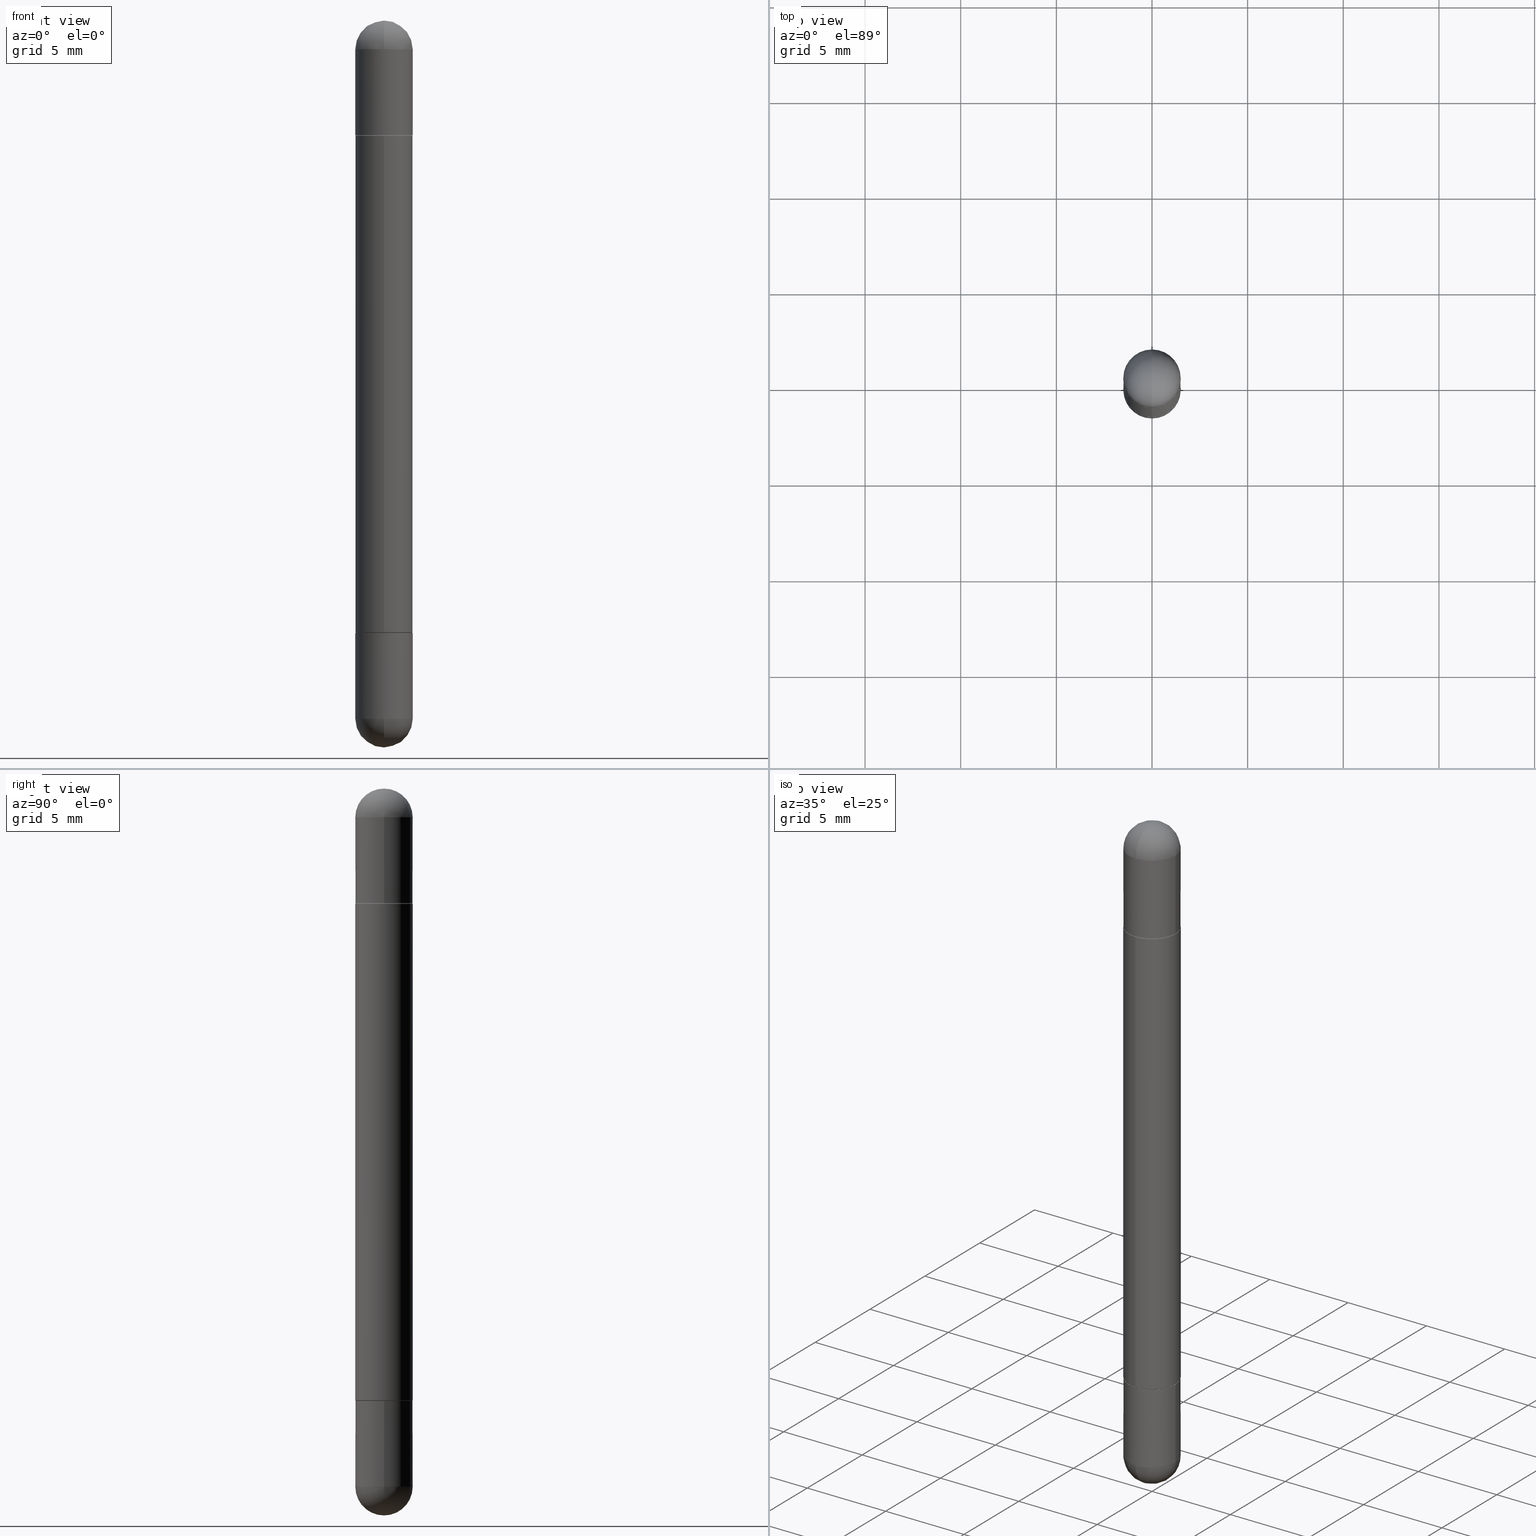
[diagram: canonical four-view strip — front | top / right | iso, engineering-drawing reading convention]
A machine part, canonical four-view strip (front | top / right | iso — engineering-drawing reading convention). The complete STEP part file that produces these views, byte-faithful:
ISO-10303-21;
HEADER;
FILE_DESCRIPTION (( 'STEP AP203' ),
    '1' );
FILE_NAME ('49077.STEP',
    '2024-03-01T12:50:32',
    ( '' ),
    ( '' ),
    'SwSTEP 2.0',
    'SolidWorks 2023',
    '' );
FILE_SCHEMA (( 'CONFIG_CONTROL_DESIGN' ));
ENDSEC;

DATA;
#1 = APPROVAL_ROLE ( '' ) ;
#2 = DIRECTION ( 'NONE',  ( -4.937700262165390546E-15, -0.7071067811866658115, 0.7071067811864292230 ) ) ;
#3 = ADVANCED_FACE ( 'NONE', ( #662 ), #674, .T. ) ;
#4 = VERTEX_POINT ( 'NONE', #732 ) ;
#5 = CARTESIAN_POINT ( 'NONE',  ( 3.090787597894449252E-29, -4.384967029417703584E-15, -0.2362000000000003264 ) ) ;
#6 = CARTESIAN_POINT ( 'NONE',  ( 3.088334397165904554E-29, -4.381486620631754468E-15, -0.2372000000000001330 ) ) ;
#7 = ORIENTED_EDGE ( 'NONE', *, *, #535, .F. ) ;
#8 = PRODUCT_DEFINITION ( 'UNKNOWN', '', #379, #723 ) ;
#9 = CARTESIAN_POINT ( 'NONE',  ( 1.835116804988446223E-29, -2.603519792329481591E-15, -0.7480500000000001037 ) ) ;
#10 = DIRECTION ( 'NONE',  ( -2.445468806185136597E-29, 3.491481338843145583E-15, 1.000000000000000000 ) ) ;
#11 = VERTEX_POINT ( 'NONE', #534 ) ;
#12 = CARTESIAN_POINT ( 'NONE',  ( -0.05905000000000001914, -4.288599812930171320E-15, -1.437049999999999939 ) ) ;
#13 = AXIS2_PLACEMENT_3D ( 'NONE', #611, #48, #802 ) ;
#14 = VECTOR ( 'NONE', #443, 39.37007874015748143 ) ;
#15 = EDGE_CURVE ( 'NONE', #599, #256, #668, .T. ) ;
#16 = CARTESIAN_POINT ( 'NONE',  ( 3.090787597894449252E-29, -4.384967029417703584E-15, -0.2362000000000003264 ) ) ;
#17 = ORIENTED_EDGE ( 'NONE', *, *, #739, .F. ) ;
#18 = LINE ( 'NONE', #67, #251 ) ;
#19 = PERSON_AND_ORGANIZATION ( #602, #449 ) ;
#20 = CARTESIAN_POINT ( 'NONE',  ( -0.05905000000000001914, -4.288599812930171320E-15, -1.259899999999999798 ) ) ;
#21 = ORIENTED_EDGE ( 'NONE', *, *, #402, .F. ) ;
#22 = DIRECTION ( 'NONE',  ( 2.445468806185136597E-29, -3.491481338843145583E-15, 1.000000000000000000 ) ) ;
#23 = DIRECTION ( 'NONE',  ( 1.000000000000000000, -6.982962677686266711E-15, 4.876176775795935793E-29 ) ) ;
#24 = ORIENTED_EDGE ( 'NONE', *, *, #150, .T. ) ;
#25 = DIRECTION ( 'NONE',  ( -2.453200728545479621E-29, 3.480408785949443313E-15, 1.000000000000000000 ) ) ;
#26 = VECTOR ( 'NONE', #2, 39.37007874015748143 ) ;
#27 = DIRECTION ( 'NONE',  ( 2.445468806185136597E-29, -3.491481338843145583E-15, 1.000000000000000000 ) ) ;
#28 = AXIS2_PLACEMENT_3D ( 'NONE', #735, #90, #609 ) ;
#29 = LOCAL_TIME ( 7, 50, 32.00000000000000000, #187 ) ;
#30 = EDGE_LOOP ( 'NONE', ( #652, #525, #338, #500 ) ) ;
#31 = EDGE_CURVE ( 'NONE', #4, #399, #816, .T. ) ;
#32 = PLANE ( 'NONE',  #795 ) ;
#33 = DIRECTION ( 'NONE',  ( 1.000000000000000000, -6.982962677686265922E-15, -4.883557194083112340E-29 ) ) ;
#34 = ORIENTED_EDGE ( 'NONE', *, *, #531, .T. ) ;
#35 = PERSON_AND_ORGANIZATION ( #602, #449 ) ;
#36 = DIRECTION ( 'NONE',  ( -7.105427357601001070E-15, -1.000000000000000000, 0.000000000000000000 ) ) ;
#37 = DIRECTION ( 'NONE',  ( -2.453200728545479340E-29, 3.480408785949443313E-15, -1.000000000000000000 ) ) ;
#38 = EDGE_LOOP ( 'NONE', ( #72, #465, #589, #786, #557 ) ) ;
#39 = EDGE_CURVE ( 'NONE', #11, #812, #356, .T. ) ;
#40 = CARTESIAN_POINT ( 'NONE',  ( 3.183141170014464762E-29, -5.491615626124592102E-15, -1.437049999999999939 ) ) ;
#41 = CIRCLE ( 'NONE', #196, 0.05905000000000001914 ) ;
#42 = CIRCLE ( 'NONE', #493, 0.05804999999999999744 ) ;
#43 = VERTEX_POINT ( 'NONE', #225 ) ;
#44 = CARTESIAN_POINT ( 'NONE',  ( 3.514260947928350449E-29, -5.017433257984542594E-15, -0.05905000000000028976 ) ) ;
#45 = ORIENTED_EDGE ( 'NONE', *, *, #635, .F. ) ;
#46 = COORDINATED_UNIVERSAL_TIME_OFFSET ( 5, 0, .BEHIND. ) ;
#47 = DIRECTION ( 'NONE',  ( 2.438088387897960049E-29, -3.491481338843145188E-15, 1.000000000000000000 ) ) ;
#48 = DIRECTION ( 'NONE',  ( -2.453200728545479621E-29, 3.480408785949443313E-15, -1.000000000000000000 ) ) ;
#49 = EDGE_CURVE ( 'NONE', #713, #313, #666, .T. ) ;
#50 = CLOSED_SHELL ( 'NONE', ( #440, #683, #421, #714, #269 ) ) ;
#51 = DIRECTION ( 'NONE',  ( 2.438088387897960049E-29, -3.491481338843145188E-15, -1.000000000000000000 ) ) ;
#52 = CONICAL_SURFACE ( 'NONE', #472, 0.05804999999999999744, 0.7853981633976190313 ) ;
#53 = VECTOR ( 'NONE', #219, 39.37007874015748143 ) ;
#54 = LOCAL_TIME ( 7, 50, 32.00000000000000000, #170 ) ;
#55 = DATE_TIME_ROLE ( 'creation_date' ) ;
#56 = FACE_OUTER_BOUND ( 'NONE', #492, .T. ) ;
#57 = ORIENTED_EDGE ( 'NONE', *, *, #583, .F. ) ;
#58 = PLANE ( 'NONE',  #778 ) ;
#59 = ORIENTED_EDGE ( 'NONE', *, *, #246, .T. ) ;
#60 = CARTESIAN_POINT ( 'NONE',  ( 4.051124067684407678E-16, 0.05904999999999575866, -0.2371999999999999387 ) ) ;
#61 = APPROVAL_STATUS ( 'not_yet_approved' ) ;
#62 = EDGE_CURVE ( 'NONE', #619, #436, #349, .T. ) ;
#63 = DIRECTION ( 'NONE',  ( -2.453200728545479621E-29, 3.480408785949443313E-15, -1.000000000000000000 ) ) ;
#64 = ORIENTED_EDGE ( 'NONE', *, *, #373, .F. ) ;
#65 = CIRCLE ( 'NONE', #524, 0.05905000000000001914 ) ;
#66 = AXIS2_PLACEMENT_3D ( 'NONE', #351, #47, #224 ) ;
#67 = CARTESIAN_POINT ( 'NONE',  ( -0.05905000000000001914, 4.195754854663392958E-16, -2.904631170795522943E-30 ) ) ;
#68 = CARTESIAN_POINT ( 'NONE',  ( 0.000000000000000000, 0.000000000000000000, 0.000000000000000000 ) ) ;
#69 = VERTEX_POINT ( 'NONE', #359 ) ;
#70 = CARTESIAN_POINT ( 'NONE',  ( 3.081046148912652946E-29, -4.398917338808479031E-15, -0.2362000000000003264 ) ) ;
#71 = DIRECTION ( 'NONE',  ( -2.453200728545479340E-29, 3.480408785949443313E-15, -1.000000000000000000 ) ) ;
#72 = ORIENTED_EDGE ( 'NONE', *, *, #384, .F. ) ;
#73 = ADVANCED_FACE ( 'NONE', ( #544 ), #404, .T. ) ;
#74 = CARTESIAN_POINT ( 'NONE',  ( 3.982519087706682683E-16, 0.05804999999999560512, -0.2362000000000001321 ) ) ;
#75 = CYLINDRICAL_SURFACE ( 'NONE', #804, 0.05905000000000007465 ) ;
#76 = ORIENTED_EDGE ( 'NONE', *, *, #745, .F. ) ;
#77 = DIRECTION ( 'NONE',  ( -1.000000000000000000, 0.000000000000000000, 0.000000000000000000 ) ) ;
#78 = AXIS2_PLACEMENT_3D ( 'NONE', #539, #799, #401 ) ;
#79 = CARTESIAN_POINT ( 'NONE',  ( 0.000000000000000000, 0.000000000000000000, -1.496100000000000207 ) ) ;
#80 = ORIENTED_EDGE ( 'NONE', *, *, #317, .F. ) ;
#81 = DIRECTION ( 'NONE',  ( -6.982962677686265922E-15, -1.000000000000000000, 4.706025828879006993E-15 ) ) ;
#82 = LINE ( 'NONE', #464, #130 ) ;
#83 = ORIENTED_EDGE ( 'NONE', *, *, #546, .T. ) ;
#84 = FACE_OUTER_BOUND ( 'NONE', #496, .T. ) ;
#85 = DIRECTION ( 'NONE',  ( -2.453200728545479340E-29, 3.480408785949443313E-15, -1.000000000000000000 ) ) ;
#86 = EDGE_CURVE ( 'NONE', #537, #11, #604, .T. ) ;
#87 = ORIENTED_EDGE ( 'NONE', *, *, #402, .T. ) ;
#88 = AXIS2_PLACEMENT_3D ( 'NONE', #6, #810, #445 ) ;
#89 = PERSON_AND_ORGANIZATION_ROLE ( 'design_supplier' ) ;
#90 = DIRECTION ( 'NONE',  ( -2.445468806185136597E-29, 3.491481338843145583E-15, -1.000000000000000000 ) ) ;
#91 = VECTOR ( 'NONE', #297, 39.37007874015748143 ) ;
#92 = LOCAL_TIME ( 7, 50, 32.00000000000000000, #46 ) ;
#93 = ADVANCED_FACE ( 'NONE', ( #288 ), #244, .T. ) ;
#94 = VERTEX_POINT ( 'NONE', #165 ) ;
#95 = SECURITY_CLASSIFICATION_LEVEL ( 'unclassified' ) ;
#96 = ADVANCED_FACE ( 'NONE', ( #316 ), #52, .T. ) ;
#97 = CARTESIAN_POINT ( 'NONE',  ( 4.051124067684094106E-16, 0.05905000000000007465, -1.496099999999999985 ) ) ;
#98 = DIRECTION ( 'NONE',  ( -2.453200728545479621E-29, 3.480408785949443313E-15, 1.000000000000000000 ) ) ;
#99 = VERTEX_POINT ( 'NONE', #550 ) ;
#100 = EDGE_CURVE ( 'NONE', #121, #599, #685, .T. ) ;
#101 = CARTESIAN_POINT ( 'NONE',  ( 3.183141170014464762E-29, -5.491615626124592102E-15, -0.05905000000000028976 ) ) ;
#102 = ORIENTED_EDGE ( 'NONE', *, *, #546, .F. ) ;
#103 = FACE_OUTER_BOUND ( 'NONE', #554, .T. ) ;
#104 = AXIS2_PLACEMENT_3D ( 'NONE', #762, #195, #124 ) ;
#105 = CIRCLE ( 'NONE', #117, 0.05905000000000001914 ) ;
#106 = DIRECTION ( 'NONE',  ( -6.982962677686265922E-15, -1.000000000000000000, 4.706025828879006993E-15 ) ) ;
#107 = AXIS2_PLACEMENT_3D ( 'NONE', #585, #25, #528 ) ;
#108 = CALENDAR_DATE ( 2024, 1, 3 ) ;
#109 = DIRECTION ( 'NONE',  ( 6.982962677686265922E-15, 1.000000000000000000, 3.469747663417762014E-15 ) ) ;
#110 = DIRECTION ( 'NONE',  ( 1.000000000000000000, -6.982962677686265922E-15, -4.883557194083112340E-29 ) ) ;
#111 = ORIENTED_EDGE ( 'NONE', *, *, #535, .T. ) ;
#112 = EDGE_CURVE ( 'NONE', #157, #293, #259, .T. ) ;
#113 = ORIENTED_EDGE ( 'NONE', *, *, #200, .F. ) ;
#114 = DATE_AND_TIME ( #681, #687 ) ;
#115 = FACE_OUTER_BOUND ( 'NONE', #600, .T. ) ;
#116 = CIRCLE ( 'NONE', #325, 0.05905000000000013710 ) ;
#117 = AXIS2_PLACEMENT_3D ( 'NONE', #70, #132, #497 ) ;
#118 = EDGE_LOOP ( 'NONE', ( #305, #755, #59, #595 ) ) ;
#119 = COORDINATED_UNIVERSAL_TIME_OFFSET ( 5, 0, .BEHIND. ) ;
#120 = CARTESIAN_POINT ( 'NONE',  ( 3.183141170014464762E-29, -5.491615626124592102E-15, -0.05905000000000028976 ) ) ;
#121 = VERTEX_POINT ( 'NONE', #247 ) ;
#122 = EDGE_CURVE ( 'NONE', #371, #632, #656, .T. ) ;
#123 = CYLINDRICAL_SURFACE ( 'NONE', #146, 0.05905000000000001914 ) ;
#124 = DIRECTION ( 'NONE',  ( 1.000000000000000000, -6.982962677686270655E-15, 0.000000000000000000 ) ) ;
#125 = ORIENTED_EDGE ( 'NONE', *, *, #597, .T. ) ;
#126 = CARTESIAN_POINT ( 'NONE',  ( 0.000000000000000000, 0.000000000000000000, 0.000000000000000000 ) ) ;
#127 = CC_DESIGN_DATE_AND_TIME_ASSIGNMENT ( #230, #480, ( #343 ) ) ;
#128 = CYLINDRICAL_SURFACE ( 'NONE', #792, 0.05905000000000001914 ) ;
#129 = ORIENTED_EDGE ( 'NONE', *, *, #86, .T. ) ;
#130 = VECTOR ( 'NONE', #71, 39.37007874015748143 ) ;
#131 = AXIS2_PLACEMENT_3D ( 'NONE', #454, #372, #627 ) ;
#132 = DIRECTION ( 'NONE',  ( 2.445468806185136597E-29, -3.491481338843145583E-15, 1.000000000000000000 ) ) ;
#133 = AXIS2_PLACEMENT_3D ( 'NONE', #283, #210, #144 ) ;
#134 = DIRECTION ( 'NONE',  ( 2.445468806185136597E-29, -3.491481338843145583E-15, 1.000000000000000000 ) ) ;
#135 = ADVANCED_FACE ( 'NONE', ( #622 ), #58, .F. ) ;
#136 = ORIENTED_EDGE ( 'NONE', *, *, #200, .T. ) ;
#137 = CARTESIAN_POINT ( 'NONE',  ( 3.090787597894449252E-29, -4.384967029417703584E-15, -0.2362000000000003264 ) ) ;
#138 = DIRECTION ( 'NONE',  ( -6.982962677686265922E-15, -1.000000000000000000, -3.469747663417769114E-15 ) ) ;
#139 = EDGE_LOOP ( 'NONE', ( #800, #45 ) ) ;
#140 = DIRECTION ( 'NONE',  ( 2.453200728545479621E-29, -3.480408785949443313E-15, 1.000000000000000000 ) ) ;
#141 = CARTESIAN_POINT ( 'NONE',  ( -0.05905000000000001914, -4.303062891628101254E-15, -0.2362000000000003264 ) ) ;
#142 = VERTEX_POINT ( 'NONE', #304 ) ;
#143 = EDGE_CURVE ( 'NONE', #605, #619, #444, .T. ) ;
#144 = DIRECTION ( 'NONE',  ( -6.982962677686265922E-15, -1.000000000000000000, 4.626330217890359081E-15 ) ) ;
#145 = AXIS2_PLACEMENT_3D ( 'NONE', #768, #85, #151 ) ;
#146 = AXIS2_PLACEMENT_3D ( 'NONE', #329, #193, #257 ) ;
#147 = DIRECTION ( 'NONE',  ( -6.982962677686265922E-15, -1.000000000000000000, -4.626330217890363814E-15 ) ) ;
#148 = ORIENTED_EDGE ( 'NONE', *, *, #354, .F. ) ;
#149 = DIRECTION ( 'NONE',  ( 1.000000000000000000, -6.982962677686270655E-15, 0.000000000000000000 ) ) ;
#150 = EDGE_CURVE ( 'NONE', #69, #371, #559, .T. ) ;
#151 = DIRECTION ( 'NONE',  ( -6.982962677686265922E-15, -1.000000000000000000, -3.480408785949443313E-15 ) ) ;
#152 = ORIENTED_EDGE ( 'NONE', *, *, #261, .F. ) ;
#153 = DIRECTION ( 'NONE',  ( 2.438088387897960049E-29, -3.491481338843145188E-15, 1.000000000000000000 ) ) ;
#154 = APPROVAL_ROLE ( '' ) ;
#155 = DIRECTION ( 'NONE',  ( -2.453200728545479621E-29, 3.480408785949443313E-15, -1.000000000000000000 ) ) ;
#156 = EDGE_CURVE ( 'NONE', #43, #346, #226, .T. ) ;
#157 = VERTEX_POINT ( 'NONE', #375 ) ;
#158 = AXIS2_PLACEMENT_3D ( 'NONE', #301, #689, #505 ) ;
#159 = CIRCLE ( 'NONE', #526, 0.05905000000000025506 ) ;
#160 = DIRECTION ( 'NONE',  ( -6.982962677686265922E-15, -1.000000000000000000, -3.480408785949443313E-15 ) ) ;
#161 = VECTOR ( 'NONE', #397, 39.37007874015748143 ) ;
#162 = EDGE_CURVE ( 'NONE', #4, #584, #748, .T. ) ;
#163 = DIRECTION ( 'NONE',  ( -2.445468806185136877E-29, 3.491481338843145188E-15, -1.000000000000000000 ) ) ;
#164 = DIRECTION ( 'NONE',  ( 6.982962677686265922E-15, 1.000000000000000000, -4.626330217890349615E-15 ) ) ;
#165 = CARTESIAN_POINT ( 'NONE',  ( -4.195754854663065087E-16, -0.05905000000000539678, -1.437049999999999716 ) ) ;
#166 = MANIFOLD_SOLID_BREP ( 'Mirror4[3]', #374 ) ;
#167 = EDGE_LOOP ( 'NONE', ( #80, #460 ) ) ;
#168 = DIRECTION ( 'NONE',  ( -2.445468806185136597E-29, 3.491481338843145583E-15, -1.000000000000000000 ) ) ;
#169 = ORIENTED_EDGE ( 'NONE', *, *, #150, .F. ) ;
#170 = COORDINATED_UNIVERSAL_TIME_OFFSET ( 5, 0, .BEHIND. ) ;
#171 = DIRECTION ( 'NONE',  ( 1.000000000000000000, -6.982962677686270655E-15, 0.000000000000000000 ) ) ;
#172 = VECTOR ( 'NONE', #455, 39.37007874015748143 ) ;
#173 = AXIS2_PLACEMENT_3D ( 'NONE', #281, #263, #334 ) ;
#174 = ORIENTED_EDGE ( 'NONE', *, *, #412, .T. ) ;
#175 = EDGE_CURVE ( 'NONE', #812, #293, #353, .T. ) ;
#176 =( NAMED_UNIT ( * ) PLANE_ANGLE_UNIT ( ) SI_UNIT ( $, .RADIAN. ) );
#177 = DIRECTION ( 'NONE',  ( 1.000000000000000000, -6.982962677686270655E-15, 0.000000000000000000 ) ) ;
#178 = CALENDAR_DATE ( 2024, 1, 3 ) ;
#179 = DIRECTION ( 'NONE',  ( -6.982962677686265922E-15, -1.000000000000000000, -3.469747663417769114E-15 ) ) ;
#180 = ORIENTED_EDGE ( 'NONE', *, *, #39, .T. ) ;
#181 = CARTESIAN_POINT ( 'NONE',  ( 3.514260947928350449E-29, -5.017433257984542594E-15, -0.05905000000000028976 ) ) ;
#182 = AXIS2_PLACEMENT_3D ( 'NONE', #181, #134, #430 ) ;
#183 = AXIS2_PLACEMENT_3D ( 'NONE', #44, #796, #233 ) ;
#184 = EDGE_CURVE ( 'NONE', #619, #605, #116, .T. ) ;
#185 = VERTEX_POINT ( 'NONE', #618 ) ;
#186 = DIRECTION ( 'NONE',  ( -6.982962677686265922E-15, -1.000000000000000000, -3.529519371659254850E-15 ) ) ;
#187 = COORDINATED_UNIVERSAL_TIME_OFFSET ( 5, 0, .BEHIND. ) ;
#188 = DIRECTION ( 'NONE',  ( -6.982962677686265922E-15, -1.000000000000000000, -4.626330217890363814E-15 ) ) ;
#189 = ORIENTED_EDGE ( 'NONE', *, *, #295, .T. ) ;
#190 = DIRECTION ( 'NONE',  ( 1.000000000000000000, -6.982962677686270655E-15, 0.000000000000000000 ) ) ;
#191 = CARTESIAN_POINT ( 'NONE',  ( 3.183141170014464762E-29, -5.491615626124592102E-15, -1.437049999999999939 ) ) ;
#192 = ORIENTED_EDGE ( 'NONE', *, *, #635, .T. ) ;
#193 = DIRECTION ( 'NONE',  ( -2.445468806185136597E-29, 3.491481338843145583E-15, -1.000000000000000000 ) ) ;
#194 = EDGE_CURVE ( 'NONE', #142, #408, #249, .T. ) ;
#195 = DIRECTION ( 'NONE',  ( -2.445468806185136597E-29, 3.491481338843145583E-15, 1.000000000000000000 ) ) ;
#196 = AXIS2_PLACEMENT_3D ( 'NONE', #711, #523, #529 ) ;
#197 = ORIENTED_EDGE ( 'NONE', *, *, #508, .F. ) ;
#198 = CIRCLE ( 'NONE', #418, 0.05905000000000001914 ) ;
#199 = CARTESIAN_POINT ( 'NONE',  ( 0.000000000000000000, 0.000000000000000000, -1.496100000000000207 ) ) ;
#200 = EDGE_CURVE ( 'NONE', #728, #580, #766, .T. ) ;
#201 = CARTESIAN_POINT ( 'NONE',  ( 3.088334397165904554E-29, -4.381486620631754468E-15, -0.2372000000000001330 ) ) ;
#202 = ORIENTED_EDGE ( 'NONE', *, *, #156, .T. ) ;
#203 = DIRECTION ( 'NONE',  ( -1.000000000000000000, 6.982962677686265922E-15, -4.883557194083112340E-29 ) ) ;
#204 = DIRECTION ( 'NONE',  ( -6.982962677686265922E-15, -1.000000000000000000, -3.529519371659254850E-15 ) ) ;
#205 = ORIENTED_EDGE ( 'NONE', *, *, #302, .F. ) ;
#206 = DIRECTION ( 'NONE',  ( -2.453200728545479621E-29, 3.480408785949443313E-15, 1.000000000000000000 ) ) ;
#207 = PLANE ( 'NONE',  #145 ) ;
#208 = EDGE_LOOP ( 'NONE', ( #684, #192, #521, #17 ) ) ;
#209 = ADVANCED_FACE ( 'NONE', ( #56 ), #494, .T. ) ;
#210 = DIRECTION ( 'NONE',  ( -2.453200728545479621E-29, 3.480408785949443313E-15, 1.000000000000000000 ) ) ;
#211 = CONICAL_SURFACE ( 'NONE', #669, 0.05804999999999999744, 0.7853981633976190313 ) ;
#212 = CIRCLE ( 'NONE', #239, 0.05905000000000001914 ) ;
#213 = AXIS2_PLACEMENT_3D ( 'NONE', #369, #309, #809 ) ;
#214 = LINE ( 'NONE', #579, #172 ) ;
#215 = ORIENTED_EDGE ( 'NONE', *, *, #360, .T. ) ;
#216 = CC_DESIGN_PERSON_AND_ORGANIZATION_ASSIGNMENT ( #350, #89, ( #379 ) ) ;
#217 = CARTESIAN_POINT ( 'NONE',  ( 3.514260947928350449E-29, -5.017433257984542594E-15, -0.05905000000000028976 ) ) ;
#218 = APPROVAL_DATE_TIME ( #664, #516 ) ;
#219 = DIRECTION ( 'NONE',  ( -4.937700262165390546E-15, -0.7071067811866658115, -0.7071067811864292230 ) ) ;
#220 = ORIENTED_EDGE ( 'NONE', *, *, #49, .F. ) ;
#221 = CARTESIAN_POINT ( 'NONE',  ( 3.183141170014464762E-29, -5.491615626124592102E-15, -0.05905000000000028976 ) ) ;
#222 = ADVANCED_FACE ( 'NONE', ( #115 ), #211, .T. ) ;
#223 = ADVANCED_FACE ( 'NONE', ( #696 ), #128, .T. ) ;
#224 = DIRECTION ( 'NONE',  ( -1.000000000000000000, 6.982962677686265922E-15, 4.876176775795935793E-29 ) ) ;
#225 = CARTESIAN_POINT ( 'NONE',  ( 0.05905000000000001914, -4.811261284925853162E-15, -1.259899999999999798 ) ) ;
#226 = CIRCLE ( 'NONE', #158, 0.05905000000000001914 ) ;
#227 = AXIS2_PLACEMENT_3D ( 'NONE', #126, #558, #253 ) ;
#228 = FACE_OUTER_BOUND ( 'NONE', #335, .T. ) ;
#229 = DIRECTION ( 'NONE',  ( 6.982962677686265922E-15, 1.000000000000000000, 3.469747663417762014E-15 ) ) ;
#230 = DATE_AND_TIME ( #409, #92 ) ;
#231 = CYLINDRICAL_SURFACE ( 'NONE', #642, 0.05905000000000001914 ) ;
#232 = ORIENTED_EDGE ( 'NONE', *, *, #194, .T. ) ;
#233 = DIRECTION ( 'NONE',  ( 1.000000000000000000, -6.982962677686270655E-15, 0.000000000000000000 ) ) ;
#234 = ORIENTED_EDGE ( 'NONE', *, *, #772, .F. ) ;
#235 = EDGE_LOOP ( 'NONE', ( #152, #518, #639, #456, #411 ) ) ;
#236 = ADVANCED_FACE ( 'NONE', ( #771 ), #750, .T. ) ;
#237 = DIRECTION ( 'NONE',  ( -1.000000000000000000, 6.982962677686265922E-15, -4.883557194083112340E-29 ) ) ;
#238 = AXIS2_PLACEMENT_3D ( 'NONE', #395, #10, #520 ) ;
#239 = AXIS2_PLACEMENT_3D ( 'NONE', #770, #756, #190 ) ;
#240 = CARTESIAN_POINT ( 'NONE',  ( 3.514260947928350449E-29, -5.017433257984542594E-15, -0.05905000000000028976 ) ) ;
#241 = AXIS2_PLACEMENT_3D ( 'NONE', #783, #206, #81 ) ;
#242 = ORIENTED_EDGE ( 'NONE', *, *, #739, .T. ) ;
#243 = PERSON_AND_ORGANIZATION ( #602, #449 ) ;
#244 = SPHERICAL_SURFACE ( 'NONE', #311, 0.05905000000000025506 ) ;
#245 = CARTESIAN_POINT ( 'NONE',  ( 0.05905000000000001914, -5.120519244513884944E-15, -1.437049999999999939 ) ) ;
#246 = EDGE_CURVE ( 'NONE', #605, #798, #214, .T. ) ;
#247 = CARTESIAN_POINT ( 'NONE',  ( 4.123439461174084467E-16, 0.05904999999999487742, -0.05905000000000008159 ) ) ;
#248 = ORIENTED_EDGE ( 'NONE', *, *, #531, .F. ) ;
#249 = LINE ( 'NONE', #811, #250 ) ;
#250 = VECTOR ( 'NONE', #255, 39.37007874015748143 ) ;
#251 = VECTOR ( 'NONE', #640, 39.37007874015748143 ) ;
#252 = ORIENTED_EDGE ( 'NONE', *, *, #452, .F. ) ;
#253 = DIRECTION ( 'NONE',  ( 1.000000000000000000, -6.982962677686266711E-15, 4.876176775795935793E-29 ) ) ;
#254 = PERSON_AND_ORGANIZATION ( #602, #449 ) ;
#255 = DIRECTION ( 'NONE',  ( -2.445468806185136877E-29, 3.491481338843145188E-15, -1.000000000000000000 ) ) ;
#256 = VERTEX_POINT ( 'NONE', #634 ) ;
#257 = DIRECTION ( 'NONE',  ( 1.000000000000000000, -6.982962677686266711E-15, 0.000000000000000000 ) ) ;
#258 =( CONVERSION_BASED_UNIT ( 'INCH', #490 ) LENGTH_UNIT ( ) NAMED_UNIT ( #596 ) );
#259 = LINE ( 'NONE', #562, #803 ) ;
#260 = ORIENTED_EDGE ( 'NONE', *, *, #412, .F. ) ;
#261 = EDGE_CURVE ( 'NONE', #157, #537, #41, .T. ) ;
#262 = FACE_OUTER_BOUND ( 'NONE', #697, .T. ) ;
#263 = DIRECTION ( 'NONE',  ( -2.445468806185136597E-29, 3.491481338843145583E-15, 1.000000000000000000 ) ) ;
#264 = ORIENTED_EDGE ( 'NONE', *, *, #162, .F. ) ;
#265 = AXIS2_PLACEMENT_3D ( 'NONE', #565, #709, #186 ) ;
#266 = DIRECTION ( 'NONE',  ( -2.453200728545479621E-29, 3.480408785949443313E-15, 1.000000000000000000 ) ) ;
#267 = LINE ( 'NONE', #517, #91 ) ;
#268 = ORIENTED_EDGE ( 'NONE', *, *, #583, .T. ) ;
#269 = ADVANCED_FACE ( 'NONE', ( #718 ), #385, .T. ) ;
#270 = CARTESIAN_POINT ( 'NONE',  ( -4.123439461173440560E-16, -0.05905000000000451554, -1.258899999999999686 ) ) ;
#271 = FACE_OUTER_BOUND ( 'NONE', #773, .T. ) ;
#272 = ADVANCED_FACE ( 'NONE', ( #271 ), #207, .F. ) ;
#273 = ORIENTED_EDGE ( 'NONE', *, *, #175, .F. ) ;
#274 = CARTESIAN_POINT ( 'NONE',  ( 0.05905000000000001914, -4.123439461173741806E-16, 2.879382386107500921E-30 ) ) ;
#275 = PERSON_AND_ORGANIZATION_ROLE ( 'creator' ) ;
#276 = CARTESIAN_POINT ( 'NONE',  ( 3.088334397165904554E-29, -4.381486620631754468E-15, -0.2372000000000001330 ) ) ;
#277 = CC_DESIGN_DATE_AND_TIME_ASSIGNMENT ( #114, #55, ( #8 ) ) ;
#278 = ORIENTED_EDGE ( 'NONE', *, *, #122, .T. ) ;
#279 = CARTESIAN_POINT ( 'NONE',  ( 3.514260947928350449E-29, -5.017433257984542594E-15, -0.05905000000000028976 ) ) ;
#280 = AXIS2_PLACEMENT_3D ( 'NONE', #276, #651, #138 ) ;
#281 = CARTESIAN_POINT ( 'NONE',  ( 3.081046148912652946E-29, -4.398917338808479031E-15, -1.259899999999999798 ) ) ;
#282 = VERTEX_POINT ( 'NONE', #638 ) ;
#283 = CARTESIAN_POINT ( 'NONE',  ( 3.088334397165904554E-29, -4.381486620631754468E-15, -1.258900000000000130 ) ) ;
#284 = ADVANCED_FACE ( 'NONE', ( #320 ), #389, .F. ) ;
#285 = CARTESIAN_POINT ( 'NONE',  ( 3.183141170014464762E-29, -5.491615626124592102E-15, -0.05905000000000028976 ) ) ;
#286 = ORIENTED_EDGE ( 'NONE', *, *, #362, .F. ) ;
#287 = CYLINDRICAL_SURFACE ( 'NONE', #767, 0.05905000000000007465 ) ;
#288 = FACE_OUTER_BOUND ( 'NONE', #419, .T. ) ;
#289 = ORIENTED_EDGE ( 'NONE', *, *, #347, .T. ) ;
#290 = AXIS2_PLACEMENT_3D ( 'NONE', #679, #110, #229 ) ;
#291 = AXIS2_PLACEMENT_3D ( 'NONE', #101, #475, #407 ) ;
#292 = CARTESIAN_POINT ( 'NONE',  ( 4.051124067684401762E-16, 0.05904999999999747257, -0.7480500000000001037 ) ) ;
#293 = VERTEX_POINT ( 'NONE', #141 ) ;
#294 = DIRECTION ( 'NONE',  ( 1.000000000000000000, -6.982962677686266711E-15, 0.000000000000000000 ) ) ;
#295 = EDGE_CURVE ( 'NONE', #313, #613, #547, .T. ) ;
#296 = ORIENTED_EDGE ( 'NONE', *, *, #508, .T. ) ;
#297 = DIRECTION ( 'NONE',  ( 4.851104656541791790E-15, 0.7071067811866706965, -0.7071067811864243380 ) ) ;
#298 = VECTOR ( 'NONE', #540, 39.37007874015748143 ) ;
#299 = CIRCLE ( 'NONE', #291, 0.05905000000000025506 ) ;
#300 = CIRCLE ( 'NONE', #591, 0.05905000000000025506 ) ;
#301 = CARTESIAN_POINT ( 'NONE',  ( 3.081046148912652946E-29, -4.398917338808479031E-15, -1.259899999999999798 ) ) ;
#302 = EDGE_CURVE ( 'NONE', #313, #584, #82, .T. ) ;
#303 = CARTESIAN_POINT ( 'NONE',  ( 0.05905000000000001914, -4.811261284925853162E-15, -0.2362000000000003264 ) ) ;
#304 = CARTESIAN_POINT ( 'NONE',  ( 0.05905000000000001914, -5.120519244513884944E-15, -0.05905000000000028976 ) ) ;
#305 = ORIENTED_EDGE ( 'NONE', *, *, #62, .F. ) ;
#306 = DIRECTION ( 'NONE',  ( -1.000000000000000000, 6.982962677686265922E-15, -4.876176775795935793E-29 ) ) ;
#307 = ORIENTED_EDGE ( 'NONE', *, *, #330, .T. ) ;
#308 = CARTESIAN_POINT ( 'NONE',  ( 1.835116804988446223E-29, -2.603519792329481591E-15, -0.7480500000000001037 ) ) ;
#309 = DIRECTION ( 'NONE',  ( 0.000000000000000000, 0.000000000000000000, 1.000000000000000000 ) ) ;
#310 = DIRECTION ( 'NONE',  ( -6.982962677686265922E-15, -1.000000000000000000, 4.706025828879006993E-15 ) ) ;
#311 = AXIS2_PLACEMENT_3D ( 'NONE', #120, #370, #367 ) ;
#312 = CIRCLE ( 'NONE', #131, 0.05905000000000001914 ) ;
#313 = VERTEX_POINT ( 'NONE', #398 ) ;
#314 = CC_DESIGN_SECURITY_CLASSIFICATION ( #343, ( #379 ) ) ;
#315 = DIRECTION ( 'NONE',  ( -6.982962677686265922E-15, -1.000000000000000000, -4.626330217890363814E-15 ) ) ;
#316 = FACE_OUTER_BOUND ( 'NONE', #208, .T. ) ;
#317 = EDGE_CURVE ( 'NONE', #408, #256, #65, .T. ) ;
#318 = ORIENTED_EDGE ( 'NONE', *, *, #184, .T. ) ;
#319 = CARTESIAN_POINT ( 'NONE',  ( 3.090787597894449252E-29, -4.384967029417703584E-15, -1.259899999999999798 ) ) ;
#320 = FACE_OUTER_BOUND ( 'NONE', #139, .T. ) ;
#321 = ORIENTED_EDGE ( 'NONE', *, *, #360, .F. ) ;
#322 = APPROVAL ( #753, 'UNSPECIFIED' ) ;
#323 = FACE_OUTER_BOUND ( 'NONE', #422, .T. ) ;
#324 = DIRECTION ( 'NONE',  ( -2.453200728545479621E-29, 3.480408785949443313E-15, -1.000000000000000000 ) ) ;
#325 = AXIS2_PLACEMENT_3D ( 'NONE', #814, #631, #179 ) ;
#326 = EDGE_LOOP ( 'NONE', ( #614, #636, #663, #264 ) ) ;
#327 = VECTOR ( 'NONE', #665, 39.37007874015748143 ) ;
#328 = CONICAL_SURFACE ( 'NONE', #241, 0.05804999999999999744, 0.7853981633976190313 ) ;
#329 = CARTESIAN_POINT ( 'NONE',  ( 0.000000000000000000, 0.000000000000000000, -1.496100000000000207 ) ) ;
#330 = EDGE_CURVE ( 'NONE', #613, #313, #628, .T. ) ;
#331 = DIRECTION ( 'NONE',  ( -2.453200728545479340E-29, 3.480408785949443313E-15, 1.000000000000000000 ) ) ;
#332 = ORIENTED_EDGE ( 'NONE', *, *, #797, .T. ) ;
#333 = CARTESIAN_POINT ( 'NONE',  ( 4.016821577695544687E-16, 0.05804999999999560512, -0.2362000000000001321 ) ) ;
#334 = DIRECTION ( 'NONE',  ( 1.000000000000000000, -6.982962677686270655E-15, 0.000000000000000000 ) ) ;
#335 = EDGE_LOOP ( 'NONE', ( #396, #448, #378, #649 ) ) ;
#336 = DIRECTION ( 'NONE',  ( 1.000000000000000000, -6.982962677686265922E-15, -4.883557194083112340E-29 ) ) ;
#337 = DIRECTION ( 'NONE',  ( -6.982962677686265922E-15, -1.000000000000000000, -3.469747663417769114E-15 ) ) ;
#338 = ORIENTED_EDGE ( 'NONE', *, *, #100, .T. ) ;
#339 = ADVANCED_FACE ( 'NONE', ( #569 ), #75, .T. ) ;
#340 = CIRCLE ( 'NONE', #238, 0.05905000000000001914 ) ;
#341 = DIRECTION ( 'NONE',  ( 6.982962677686265922E-15, 1.000000000000000000, 3.469747663417762014E-15 ) ) ;
#342 = AXIS2_PLACEMENT_3D ( 'NONE', #648, #707, #458 ) ;
#343 = SECURITY_CLASSIFICATION ( '', '', #95 ) ;
#344 = CARTESIAN_POINT ( 'NONE',  ( 3.183141170014464762E-29, -5.491615626124592102E-15, -0.05905000000000028976 ) ) ;
#345 = APPLICATION_CONTEXT ( 'configuration controlled 3d designs of mechanical parts and assemblies' ) ;
#346 = VERTEX_POINT ( 'NONE', #20 ) ;
#347 = EDGE_CURVE ( 'NONE', #632, #94, #340, .T. ) ;
#348 = DIRECTION ( 'NONE',  ( -1.000000000000000000, 7.105427357601001070E-15, -4.926315508542082329E-29 ) ) ;
#349 = LINE ( 'NONE', #742, #730 ) ;
#350 = PERSON_AND_ORGANIZATION ( #602, #449 ) ;
#351 = CARTESIAN_POINT ( 'NONE',  ( 4.123439461174049462E-16, 0.05904999999999561988, -0.2362000000000000766 ) ) ;
#352 = ORIENTED_EDGE ( 'NONE', *, *, #701, .T. ) ;
#353 = CIRCLE ( 'NONE', #615, 0.05905000000000001914 ) ;
#354 = EDGE_CURVE ( 'NONE', #346, #43, #793, .T. ) ;
#355 = CARTESIAN_POINT ( 'NONE',  ( 0.05905000000000001914, -4.811261284925853162E-15, -0.2362000000000003264 ) ) ;
#356 = LINE ( 'NONE', #477, #298 ) ;
#357 = CARTESIAN_POINT ( 'NONE',  ( 0.000000000000000000, 0.000000000000000000, -1.496100000000000207 ) ) ;
#358 = CC_DESIGN_PERSON_AND_ORGANIZATION_ASSIGNMENT ( #254, #757, ( #8 ) ) ;
#359 = CARTESIAN_POINT ( 'NONE',  ( 3.330070981488499955E-29, -5.694171829508798064E-15, -1.496100000000000207 ) ) ;
#360 = EDGE_CURVE ( 'NONE', #580, #605, #582, .T. ) ;
#361 = ADVANCED_FACE ( 'NONE', ( #468 ), #727, .T. ) ;
#362 = EDGE_CURVE ( 'NONE', #728, #619, #267, .T. ) ;
#363 = AXIS2_PLACEMENT_3D ( 'NONE', #737, #607, #541 ) ;
#364 = DIRECTION ( 'NONE',  ( -2.445468806185136877E-29, 3.491481338843145188E-15, -1.000000000000000000 ) ) ;
#365 = ORIENTED_EDGE ( 'NONE', *, *, #597, .F. ) ;
#366 = DIRECTION ( 'NONE',  ( -1.000000000000000000, 0.000000000000000000, 0.000000000000000000 ) ) ;
#367 = DIRECTION ( 'NONE',  ( 6.982962677686265922E-15, 1.000000000000000000, 3.469747663417762014E-15 ) ) ;
#368 = ORIENTED_EDGE ( 'NONE', *, *, #676, .T. ) ;
#369 = CARTESIAN_POINT ( 'NONE',  ( 0.000000000000000000, 0.000000000000000000, 0.000000000000000000 ) ) ;
#370 = DIRECTION ( 'NONE',  ( 1.000000000000000000, -6.982962677686265922E-15, -4.883557194083112340E-29 ) ) ;
#371 = VERTEX_POINT ( 'NONE', #741 ) ;
#372 = DIRECTION ( 'NONE',  ( -2.445468806185136597E-29, 3.491481338843145583E-15, 1.000000000000000000 ) ) ;
#373 = EDGE_CURVE ( 'NONE', #293, #812, #686, .T. ) ;
#374 = CLOSED_SHELL ( 'NONE', ( #467, #93, #3, #476, #578 ) ) ;
#375 = CARTESIAN_POINT ( 'NONE',  ( -0.05905000000000001914, -4.303062891628101254E-15, -0.05905000000000028976 ) ) ;
#376 = AXIS2_PLACEMENT_3D ( 'NONE', #201, #641, #337 ) ;
#377 = CONICAL_SURFACE ( 'NONE', #670, 0.05804999999999999744, 0.7853981633976190313 ) ;
#378 = ORIENTED_EDGE ( 'NONE', *, *, #760, .T. ) ;
#379 = PRODUCT_DEFINITION_FORMATION_WITH_SPECIFIED_SOURCE ( 'ANY', '', #503, .NOT_KNOWN. ) ;
#380 = FACE_OUTER_BOUND ( 'NONE', #486, .T. ) ;
#381 = CARTESIAN_POINT ( 'NONE',  ( 4.123439461174049462E-16, 0.05904999999999561988, -1.259900000000000020 ) ) ;
#382 = ORIENTED_EDGE ( 'NONE', *, *, #788, .T. ) ;
#383 = DIRECTION ( 'NONE',  ( -6.982962677686265922E-15, -1.000000000000000000, -3.529519371659254850E-15 ) ) ;
#384 = EDGE_CURVE ( 'NONE', #599, #782, #428, .T. ) ;
#385 = CYLINDRICAL_SURFACE ( 'NONE', #342, 0.05905000000000001914 ) ;
#386 = ORIENTED_EDGE ( 'NONE', *, *, #555, .T. ) ;
#387 = ADVANCED_FACE ( 'NONE', ( #481 ), #752, .T. ) ;
#388 = CARTESIAN_POINT ( 'NONE',  ( -4.053609834396567598E-16, -0.05805000000000438282, -0.2362000000000005484 ) ) ;
#389 = PLANE ( 'NONE',  #416 ) ;
#390 = AXIS2_PLACEMENT_3D ( 'NONE', #16, #155, #204 ) ;
#391 = ORIENTED_EDGE ( 'NONE', *, *, #362, .T. ) ;
#392 = AXIS2_PLACEMENT_3D ( 'NONE', #533, #673, #171 ) ;
#393 = CC_DESIGN_PERSON_AND_ORGANIZATION_ASSIGNMENT ( #35, #734, ( #343 ) ) ;
#394 = CARTESIAN_POINT ( 'NONE',  ( 3.183141170014464762E-29, -5.491615626124592102E-15, -0.05905000000000028976 ) ) ;
#395 = CARTESIAN_POINT ( 'NONE',  ( 3.514260947928350449E-29, -5.017433257984542594E-15, -1.437049999999999939 ) ) ;
#396 = ORIENTED_EDGE ( 'NONE', *, *, #437, .F. ) ;
#397 = DIRECTION ( 'NONE',  ( -2.445468806185136877E-29, 3.491481338843145188E-15, 1.000000000000000000 ) ) ;
#398 = CARTESIAN_POINT ( 'NONE',  ( -4.123439461173440067E-16, -0.05905000000000451554, -0.2372000000000003272 ) ) ;
#399 = VERTEX_POINT ( 'NONE', #801 ) ;
#400 = LINE ( 'NONE', #274, #161 ) ;
#401 = DIRECTION ( 'NONE',  ( 6.860497997771530774E-15, 1.000000000000000000, 0.000000000000000000 ) ) ;
#402 = EDGE_CURVE ( 'NONE', #94, #815, #606, .T. ) ;
#403 = EDGE_LOOP ( 'NONE', ( #202, #708 ) ) ;
#404 = CONICAL_SURFACE ( 'NONE', #13, 0.05804999999999999744, 0.7853981633976190313 ) ;
#405 = AXIS2_PLACEMENT_3D ( 'NONE', #577, #140, #633 ) ;
#406 = CIRCLE ( 'NONE', #133, 0.05905000000000013710 ) ;
#407 = DIRECTION ( 'NONE',  ( 6.860497997771530774E-15, 1.000000000000000000, 0.000000000000000000 ) ) ;
#408 = VERTEX_POINT ( 'NONE', #355 ) ;
#409 = CALENDAR_DATE ( 2024, 1, 3 ) ;
#410 = PLANE ( 'NONE',  #538 ) ;
#411 = ORIENTED_EDGE ( 'NONE', *, *, #86, .F. ) ;
#412 = EDGE_CURVE ( 'NONE', #613, #185, #661, .T. ) ;
#413 = DIRECTION ( 'NONE',  ( -2.453200728545479340E-29, 3.480408785949443313E-15, -1.000000000000000000 ) ) ;
#414 = ORIENTED_EDGE ( 'NONE', *, *, #330, .F. ) ;
#415 = CC_DESIGN_PERSON_AND_ORGANIZATION_ASSIGNMENT ( #19, #275, ( #379 ) ) ;
#416 = AXIS2_PLACEMENT_3D ( 'NONE', #775, #331, #779 ) ;
#417 = FACE_OUTER_BOUND ( 'NONE', #235, .T. ) ;
#418 = AXIS2_PLACEMENT_3D ( 'NONE', #217, #617, #593 ) ;
#419 = EDGE_LOOP ( 'NONE', ( #252, #431, #644, #352 ) ) ;
#420 = CARTESIAN_POINT ( 'NONE',  ( 0.000000000000000000, 0.000000000000000000, -0.7480500000000001037 ) ) ;
#421 = ADVANCED_FACE ( 'NONE', ( #228 ), #789, .T. ) ;
#422 = EDGE_LOOP ( 'NONE', ( #169, #296, #763, #623 ) ) ;
#423 = APPROVAL_DATE_TIME ( #552, #587 ) ;
#424 = DIRECTION ( 'NONE',  ( -6.982962677686265922E-15, -1.000000000000000000, -3.529519371659254850E-15 ) ) ;
#425 = ORIENTED_EDGE ( 'NONE', *, *, #302, .T. ) ;
#426 = VECTOR ( 'NONE', #482, 39.37007874015748143 ) ;
#427 = MECHANICAL_CONTEXT ( 'NONE', #345, 'mechanical' ) ;
#428 = CIRCLE ( 'NONE', #183, 0.05905000000000001914 ) ;
#429 = APPROVAL_PERSON_ORGANIZATION ( #621, #322, #1 ) ;
#430 = DIRECTION ( 'NONE',  ( 1.000000000000000000, -6.982962677686270655E-15, 0.000000000000000000 ) ) ;
#431 = ORIENTED_EDGE ( 'NONE', *, *, #495, .T. ) ;
#432 = MANIFOLD_SOLID_BREP ( 'Mirror4[1]', #483 ) ;
#433 = CARTESIAN_POINT ( 'NONE',  ( -0.05905000000000001914, -4.303062891628101254E-15, -0.05905000000000028976 ) ) ;
#434 = PLANE ( 'NONE',  #561 ) ;
#435 = CARTESIAN_POINT ( 'NONE',  ( 3.090787597894449252E-29, -4.384967029417703584E-15, -0.2362000000000003264 ) ) ;
#436 = VERTEX_POINT ( 'NONE', #292 ) ;
#437 = EDGE_CURVE ( 'NONE', #453, #537, #446, .T. ) ;
#438 = DIRECTION ( 'NONE',  ( -0.000000000000000000, -0.000000000000000000, -1.000000000000000000 ) ) ;
#439 = MANIFOLD_SOLID_BREP ( 'Mirror4[4]', #50 ) ;
#440 = ADVANCED_FACE ( 'NONE', ( #417 ), #231, .T. ) ;
#441 = DIRECTION ( 'NONE',  ( 6.982962677686266711E-15, 1.000000000000000000, 0.000000000000000000 ) ) ;
#442 = ORIENTED_EDGE ( 'NONE', *, *, #772, .T. ) ;
#443 = DIRECTION ( 'NONE',  ( 4.851104656541791790E-15, 0.7071067811866706965, -0.7071067811864243380 ) ) ;
#444 = CIRCLE ( 'NONE', #88, 0.05905000000000013710 ) ;
#445 = DIRECTION ( 'NONE',  ( -6.982962677686265922E-15, -1.000000000000000000, -3.469747663417769114E-15 ) ) ;
#446 = CIRCLE ( 'NONE', #78, 0.05905000000000025506 ) ;
#447 = AXIS2_PLACEMENT_3D ( 'NONE', #511, #324, #574 ) ;
#448 = ORIENTED_EDGE ( 'NONE', *, *, #745, .T. ) ;
#449 = ORGANIZATION ( 'UNSPECIFIED', 'UNSPECIFIED', '' ) ;
#450 = SPHERICAL_SURFACE ( 'NONE', #731, 0.05905000000000025506 ) ;
#451 = DIRECTION ( 'NONE',  ( 1.000000000000000000, -6.982962677686270655E-15, 0.000000000000000000 ) ) ;
#452 = EDGE_CURVE ( 'NONE', #99, #121, #548, .T. ) ;
#453 = VERTEX_POINT ( 'NONE', #729 ) ;
#454 = CARTESIAN_POINT ( 'NONE',  ( 3.514260947928350449E-29, -5.017433257984542594E-15, -1.437049999999999939 ) ) ;
#455 = DIRECTION ( 'NONE',  ( -2.453200728545479340E-29, 3.480408785949443313E-15, -1.000000000000000000 ) ) ;
#456 = ORIENTED_EDGE ( 'NONE', *, *, #39, .F. ) ;
#457 = DIRECTION ( 'NONE',  ( 2.445468806185136597E-29, -3.491481338843145583E-15, 1.000000000000000000 ) ) ;
#458 = DIRECTION ( 'NONE',  ( 1.000000000000000000, -6.982962677686266711E-15, 0.000000000000000000 ) ) ;
#459 = AXIS2_PLACEMENT_3D ( 'NONE', #491, #692, #424 ) ;
#460 = ORIENTED_EDGE ( 'NONE', *, *, #646, .F. ) ;
#461 = AXIS2_PLACEMENT_3D ( 'NONE', #344, #33, #109 ) ;
#462 = CIRCLE ( 'NONE', #107, 0.05905000000000013710 ) ;
#463 = DIRECTION ( 'NONE',  ( 1.000000000000000000, -6.982962677686270655E-15, 0.000000000000000000 ) ) ;
#464 = CARTESIAN_POINT ( 'NONE',  ( -4.123439461173745257E-16, -0.05905000000000007465, -1.496100000000000430 ) ) ;
#465 = ORIENTED_EDGE ( 'NONE', *, *, #15, .T. ) ;
#466 = CARTESIAN_POINT ( 'NONE',  ( 4.123439461174084467E-16, 0.05904999999999487742, -0.05905000000000008159 ) ) ;
#467 = ADVANCED_FACE ( 'NONE', ( #536 ), #478, .T. ) ;
#468 = FACE_OUTER_BOUND ( 'NONE', #530, .T. ) ;
#469 = ORIENTED_EDGE ( 'NONE', *, *, #246, .F. ) ;
#470 = PLANE ( 'NONE',  #66 ) ;
#471 = ORIENTED_EDGE ( 'NONE', *, *, #112, .F. ) ;
#472 = AXIS2_PLACEMENT_3D ( 'NONE', #625, #758, #310 ) ;
#473 = CIRCLE ( 'NONE', #817, 0.05905000000000007465 ) ;
#474 = CARTESIAN_POINT ( 'NONE',  ( -4.123439461173499231E-16, -0.05905000000000267674, -0.7480500000000001037 ) ) ;
#475 = DIRECTION ( 'NONE',  ( 1.000000000000000000, -6.860497997771530774E-15, -4.840798879624142912E-29 ) ) ;
#476 = ADVANCED_FACE ( 'NONE', ( #598 ), #470, .F. ) ;
#477 = CARTESIAN_POINT ( 'NONE',  ( 0.05905000000000001914, -4.123439461173741806E-16, -1.496100000000000207 ) ) ;
#478 = CYLINDRICAL_SURFACE ( 'NONE', #28, 0.05905000000000001914 ) ;
#479 = EDGE_LOOP ( 'NONE', ( #545, #769, #612, #232, #506 ) ) ;
#480 = DATE_TIME_ROLE ( 'classification_date' ) ;
#481 = FACE_OUTER_BOUND ( 'NONE', #747, .T. ) ;
#482 = DIRECTION ( 'NONE',  ( -4.937700262165390546E-15, -0.7071067811866658115, -0.7071067811864292230 ) ) ;
#483 = CLOSED_SHELL ( 'NONE', ( #209, #222, #808, #487, #73, #339 ) ) ;
#484 = CIRCLE ( 'NONE', #719, 0.05804999999999999744 ) ;
#485 = APPROVAL_PERSON_ORGANIZATION ( #740, #516, #154 ) ;
#486 = EDGE_LOOP ( 'NONE', ( #278, #268, #738, #234, #368 ) ) ;
#487 = ADVANCED_FACE ( 'NONE', ( #594 ), #410, .F. ) ;
#488 = APPROVAL_ROLE ( '' ) ;
#489 = CARTESIAN_POINT ( 'NONE',  ( 3.081046148912652946E-29, -4.398917338808479031E-15, -0.2362000000000003264 ) ) ;
#490 = LENGTH_MEASURE_WITH_UNIT ( LENGTH_MEASURE( 0.02539999999999999897 ), #813 );
#491 = CARTESIAN_POINT ( 'NONE',  ( 3.090787597894449252E-29, -4.384967029417703584E-15, -0.2362000000000003264 ) ) ;
#492 = EDGE_LOOP ( 'NONE', ( #794, #693, #7, #469 ) ) ;
#493 = AXIS2_PLACEMENT_3D ( 'NONE', #5, #507, #383 ) ;
#494 = CYLINDRICAL_SURFACE ( 'NONE', #699, 0.05905000000000007465 ) ;
#495 = EDGE_CURVE ( 'NONE', #99, #782, #299, .T. ) ;
#496 = EDGE_LOOP ( 'NONE', ( #76, #805, #129, #332 ) ) ;
#497 = DIRECTION ( 'NONE',  ( 1.000000000000000000, -6.982962677686270655E-15, 0.000000000000000000 ) ) ;
#498 = APPLICATION_PROTOCOL_DEFINITION ( 'international standard', 'config_control_design', 1994, #345 ) ;
#499 = DIRECTION ( 'NONE',  ( -6.982962677686265922E-15, -1.000000000000000000, -3.529519371659254850E-15 ) ) ;
#500 = ORIENTED_EDGE ( 'NONE', *, *, #384, .T. ) ;
#501 = PRODUCT_RELATED_PRODUCT_CATEGORY ( 'detail', '', ( #503 ) ) ;
#502 = CARTESIAN_POINT ( 'NONE',  ( -4.051124067683763770E-16, -0.05905000000000539678, -0.05905000000000049099 ) ) ;
#503 = PRODUCT ( '49077', '49077', '', ( #427 ) ) ;
#504 = PERSON_AND_ORGANIZATION_ROLE ( 'design_owner' ) ;
#505 = DIRECTION ( 'NONE',  ( 1.000000000000000000, -6.982962677686270655E-15, 0.000000000000000000 ) ) ;
#506 = ORIENTED_EDGE ( 'NONE', *, *, #317, .T. ) ;
#507 = DIRECTION ( 'NONE',  ( 2.453200728545479621E-29, -3.480408785949443313E-15, 1.000000000000000000 ) ) ;
#508 = EDGE_CURVE ( 'NONE', #69, #94, #159, .T. ) ;
#509 = CLOSED_SHELL ( 'NONE', ( #653, #610, #387, #135, #223 ) ) ;
#510 = AXIS2_PLACEMENT_3D ( 'NONE', #191, #703, #441 ) ;
#511 = CARTESIAN_POINT ( 'NONE',  ( 0.000000000000000000, 0.000000000000000000, -1.496100000000000207 ) ) ;
#512 = CIRCLE ( 'NONE', #405, 0.05804999999999999744 ) ;
#513 = LOCAL_TIME ( 7, 50, 32.00000000000000000, #744 ) ;
#514 = ORIENTED_EDGE ( 'NONE', *, *, #555, .F. ) ;
#515 = CYLINDRICAL_SURFACE ( 'NONE', #227, 0.05905000000000001914 ) ;
#516 = APPROVAL ( #726, 'UNSPECIFIED' ) ;
#517 = CARTESIAN_POINT ( 'NONE',  ( 3.982519087706682683E-16, 0.05804999999999560512, -0.2362000000000001321 ) ) ;
#518 = ORIENTED_EDGE ( 'NONE', *, *, #112, .T. ) ;
#519 = LINE ( 'NONE', #74, #14 ) ;
#520 = DIRECTION ( 'NONE',  ( 1.000000000000000000, -6.982962677686270655E-15, 0.000000000000000000 ) ) ;
#521 = ORIENTED_EDGE ( 'NONE', *, *, #162, .T. ) ;
#522 = FACE_OUTER_BOUND ( 'NONE', #326, .T. ) ;
#523 = DIRECTION ( 'NONE',  ( 2.445468806185136597E-29, -3.491481338843145583E-15, 1.000000000000000000 ) ) ;
#524 = AXIS2_PLACEMENT_3D ( 'NONE', #722, #27, #451 ) ;
#525 = ORIENTED_EDGE ( 'NONE', *, *, #452, .T. ) ;
#526 = AXIS2_PLACEMENT_3D ( 'NONE', #667, #348, #36 ) ;
#527 = ADVANCED_FACE ( 'NONE', ( #103 ), #287, .T. ) ;
#528 = DIRECTION ( 'NONE',  ( -6.982962677686265922E-15, -1.000000000000000000, 4.626330217890359081E-15 ) ) ;
#529 = DIRECTION ( 'NONE',  ( 1.000000000000000000, -6.982962677686270655E-15, 0.000000000000000000 ) ) ;
#530 = EDGE_LOOP ( 'NONE', ( #414, #174, #242, #205 ) ) ;
#531 = EDGE_CURVE ( 'NONE', #580, #728, #512, .T. ) ;
#532 = DIRECTION ( 'NONE',  ( 5.024295867788919882E-15, 0.7071067811866706965, 0.7071067811864243380 ) ) ;
#533 = CARTESIAN_POINT ( 'NONE',  ( 3.514260947928350449E-29, -5.017433257984542594E-15, -1.437049999999999939 ) ) ;
#534 = CARTESIAN_POINT ( 'NONE',  ( 0.05905000000000001914, -5.120519244513884944E-15, -0.05905000000000028976 ) ) ;
#535 = EDGE_CURVE ( 'NONE', #798, #436, #616, .T. ) ;
#536 = FACE_OUTER_BOUND ( 'NONE', #38, .T. ) ;
#537 = VERTEX_POINT ( 'NONE', #502 ) ;
#538 = AXIS2_PLACEMENT_3D ( 'NONE', #791, #413, #160 ) ;
#539 = CARTESIAN_POINT ( 'NONE',  ( 3.183141170014464762E-29, -5.491615626124592102E-15, -0.05905000000000028976 ) ) ;
#540 = DIRECTION ( 'NONE',  ( -2.445468806185136877E-29, 3.491481338843145188E-15, -1.000000000000000000 ) ) ;
#541 = DIRECTION ( 'NONE',  ( 1.000000000000000000, -6.982962677686270655E-15, 0.000000000000000000 ) ) ;
#542 = CARTESIAN_POINT ( 'NONE',  ( -4.053609834396567598E-16, -0.05805000000000438282, -0.2362000000000005484 ) ) ;
#543 = DIRECTION ( 'NONE',  ( -1.000000000000000000, 6.982962677686265922E-15, 4.883557194083112340E-29 ) ) ;
#544 = FACE_OUTER_BOUND ( 'NONE', #724, .T. ) ;
#545 = ORIENTED_EDGE ( 'NONE', *, *, #15, .F. ) ;
#546 = EDGE_CURVE ( 'NONE', #282, #713, #751, .T. ) ;
#547 = CIRCLE ( 'NONE', #376, 0.05905000000000013710 ) ;
#548 = CIRCLE ( 'NONE', #657, 0.05905000000000025506 ) ;
#549 = DIRECTION ( 'NONE',  ( 0.000000000000000000, 0.000000000000000000, 1.000000000000000000 ) ) ;
#550 = CARTESIAN_POINT ( 'NONE',  ( 3.330070981488499955E-29, -5.694171829508798064E-15, -3.414809992080329023E-17 ) ) ;
#551 = ORIENTED_EDGE ( 'NONE', *, *, #676, .F. ) ;
#552 = DATE_AND_TIME ( #178, #513 ) ;
#553 = DIRECTION ( 'NONE',  ( 1.000000000000000000, -6.982962677686270655E-15, 0.000000000000000000 ) ) ;
#554 = EDGE_LOOP ( 'NONE', ( #260, #608, #425, #382 ) ) ;
#555 = EDGE_CURVE ( 'NONE', #713, #282, #42, .T. ) ;
#556 = CARTESIAN_POINT ( 'NONE',  ( -4.053609834396567598E-16, -0.05805000000000438282, -1.259899999999999576 ) ) ;
#557 = ORIENTED_EDGE ( 'NONE', *, *, #672, .F. ) ;
#558 = DIRECTION ( 'NONE',  ( -2.445468806185136597E-29, 3.491481338843145583E-15, 1.000000000000000000 ) ) ;
#559 = CIRCLE ( 'NONE', #510, 0.05905000000000025506 ) ;
#560 = CALENDAR_DATE ( 2024, 1, 3 ) ;
#561 = AXIS2_PLACEMENT_3D ( 'NONE', #420, #549, #366 ) ;
#562 = CARTESIAN_POINT ( 'NONE',  ( -0.05905000000000001914, 4.051124067684090655E-16, -1.496100000000000207 ) ) ;
#563 = UNCERTAINTY_MEASURE_WITH_UNIT (LENGTH_MEASURE( 1.000000000000000082E-05 ), #258, 'distance_accuracy_value', 'NONE');
#564 = ORIENTED_EDGE ( 'NONE', *, *, #49, .T. ) ;
#565 = CARTESIAN_POINT ( 'NONE',  ( 3.090787597894449252E-29, -4.384967029417703584E-15, -0.2362000000000003264 ) ) ;
#566 = DIRECTION ( 'NONE',  ( -2.445468806185136597E-29, 3.491481338843145583E-15, 1.000000000000000000 ) ) ;
#567 = EDGE_LOOP ( 'NONE', ( #57, #289, #87, #442, #148 ) ) ;
#568 = DIRECTION ( 'NONE',  ( -2.453200728545479621E-29, 3.480408785949443313E-15, -1.000000000000000000 ) ) ;
#569 = FACE_OUTER_BOUND ( 'NONE', #118, .T. ) ;
#570 = ORIENTED_EDGE ( 'NONE', *, *, #175, .T. ) ;
#571 = DIRECTION ( 'NONE',  ( -6.982962677686265922E-15, -1.000000000000000000, -3.529519371659254850E-15 ) ) ;
#572 = APPROVAL_DATE_TIME ( #647, #322 ) ;
#573 = VECTOR ( 'NONE', #163, 39.37007874015748143 ) ;
#574 = DIRECTION ( 'NONE',  ( -6.982962677686265922E-15, -1.000000000000000000, -4.626330217890363814E-15 ) ) ;
#575 = AXIS2_PLACEMENT_3D ( 'NONE', #394, #336, #341 ) ;
#576 = ORIENTED_EDGE ( 'NONE', *, *, #143, .T. ) ;
#577 = CARTESIAN_POINT ( 'NONE',  ( 3.090787597894449252E-29, -4.384967029417703584E-15, -0.2362000000000003264 ) ) ;
#578 = ADVANCED_FACE ( 'NONE', ( #691 ), #123, .T. ) ;
#579 = CARTESIAN_POINT ( 'NONE',  ( -4.123439461173745257E-16, -0.05905000000000007465, -1.496100000000000430 ) ) ;
#580 = VERTEX_POINT ( 'NONE', #388 ) ;
#581 = CARTESIAN_POINT ( 'NONE',  ( 3.514260947928350449E-29, -5.017433257984542594E-15, -0.05905000000000028976 ) ) ;
#582 = LINE ( 'NONE', #784, #53 ) ;
#583 = EDGE_CURVE ( 'NONE', #632, #346, #18, .T. ) ;
#584 = VERTEX_POINT ( 'NONE', #270 ) ;
#585 = CARTESIAN_POINT ( 'NONE',  ( 3.088334397165904554E-29, -4.381486620631754468E-15, -1.258900000000000130 ) ) ;
#586 = DIRECTION ( 'NONE',  ( -2.453200728545479621E-29, 3.480408785949443313E-15, -1.000000000000000000 ) ) ;
#587 = APPROVAL ( #61, 'UNSPECIFIED' ) ;
#588 = AXIS2_PLACEMENT_3D ( 'NONE', #240, #743, #177 ) ;
#589 = ORIENTED_EDGE ( 'NONE', *, *, #646, .T. ) ;
#590 = CIRCLE ( 'NONE', #700, 0.05905000000000001914 ) ;
#591 = AXIS2_PLACEMENT_3D ( 'NONE', #221, #645, #725 ) ;
#592 = CARTESIAN_POINT ( 'NONE',  ( -4.053609834396567598E-16, -0.05805000000000438282, -0.2362000000000005484 ) ) ;
#593 = DIRECTION ( 'NONE',  ( 1.000000000000000000, -6.982962677686270655E-15, 0.000000000000000000 ) ) ;
#594 = FACE_OUTER_BOUND ( 'NONE', #690, .T. ) ;
#595 = ORIENTED_EDGE ( 'NONE', *, *, #620, .F. ) ;
#596 = DIMENSIONAL_EXPONENTS ( 1.000000000000000000, 0.000000000000000000, 0.000000000000000000, 0.000000000000000000, 0.000000000000000000, 0.000000000000000000, 0.000000000000000000 ) ;
#597 = EDGE_CURVE ( 'NONE', #282, #613, #519, .T. ) ;
#598 = FACE_OUTER_BOUND ( 'NONE', #167, .T. ) ;
#599 = VERTEX_POINT ( 'NONE', #433 ) ;
#600 = EDGE_LOOP ( 'NONE', ( #113, #391, #318, #321 ) ) ;
#601 = SHAPE_DEFINITION_REPRESENTATION ( #678, #705 ) ;
#602 = PERSON ( 'UNSPECIFIED', 'UNSPECIFIED', 'UNSPECIFIED', ('UNSPECIFIED'), ('UNSPECIFIED'), ('UNSPECIFIED') ) ;
#603 = ORIENTED_EDGE ( 'NONE', *, *, #797, .F. ) ;
#604 = CIRCLE ( 'NONE', #588, 0.05905000000000001914 ) ;
#605 = VERTEX_POINT ( 'NONE', #637 ) ;
#606 = CIRCLE ( 'NONE', #392, 0.05905000000000001914 ) ;
#607 = DIRECTION ( 'NONE',  ( 2.445468806185136597E-29, -3.491481338843145583E-15, 1.000000000000000000 ) ) ;
#608 = ORIENTED_EDGE ( 'NONE', *, *, #295, .F. ) ;
#609 = DIRECTION ( 'NONE',  ( 1.000000000000000000, -6.982962677686266711E-15, 0.000000000000000000 ) ) ;
#610 = ADVANCED_FACE ( 'NONE', ( #323 ), #450, .T. ) ;
#611 = CARTESIAN_POINT ( 'NONE',  ( 3.090787597894449252E-29, -4.384967029417703584E-15, -0.2362000000000003264 ) ) ;
#612 = ORIENTED_EDGE ( 'NONE', *, *, #701, .F. ) ;
#613 = VERTEX_POINT ( 'NONE', #706 ) ;
#614 = ORIENTED_EDGE ( 'NONE', *, *, #31, .T. ) ;
#615 = AXIS2_PLACEMENT_3D ( 'NONE', #489, #746, #553 ) ;
#616 = CIRCLE ( 'NONE', #630, 0.05905000000000007465 ) ;
#617 = DIRECTION ( 'NONE',  ( 2.445468806185136597E-29, -3.491481338843145583E-15, 1.000000000000000000 ) ) ;
#618 = CARTESIAN_POINT ( 'NONE',  ( 4.051124067684279488E-16, 0.05904999999999575866, -1.258900000000000352 ) ) ;
#619 = VERTEX_POINT ( 'NONE', #60 ) ;
#620 = EDGE_CURVE ( 'NONE', #436, #798, #473, .T. ) ;
#621 = PERSON_AND_ORGANIZATION ( #602, #449 ) ;
#622 = FACE_OUTER_BOUND ( 'NONE', #403, .T. ) ;
#623 = ORIENTED_EDGE ( 'NONE', *, *, #122, .F. ) ;
#624 = DIRECTION ( 'NONE',  ( 6.982962677686265922E-15, 1.000000000000000000, -4.626330217890349615E-15 ) ) ;
#625 = CARTESIAN_POINT ( 'NONE',  ( 3.090787597894449252E-29, -4.384967029417703584E-15, -1.259899999999999798 ) ) ;
#626 = ORIENTED_EDGE ( 'NONE', *, *, #620, .T. ) ;
#627 = DIRECTION ( 'NONE',  ( 1.000000000000000000, -6.982962677686270655E-15, 0.000000000000000000 ) ) ;
#628 = CIRCLE ( 'NONE', #280, 0.05905000000000013710 ) ;
#629 = FACE_OUTER_BOUND ( 'NONE', #749, .T. ) ;
#630 = AXIS2_PLACEMENT_3D ( 'NONE', #9, #761, #77 ) ;
#631 = DIRECTION ( 'NONE',  ( 2.453200728545479621E-29, -3.480408785949443313E-15, 1.000000000000000000 ) ) ;
#632 = VERTEX_POINT ( 'NONE', #12 ) ;
#633 = DIRECTION ( 'NONE',  ( -6.982962677686265922E-15, -1.000000000000000000, -3.529519371659254850E-15 ) ) ;
#634 = CARTESIAN_POINT ( 'NONE',  ( -0.05905000000000001914, -4.303062891628101254E-15, -0.2362000000000003264 ) ) ;
#635 = EDGE_CURVE ( 'NONE', #399, #4, #484, .T. ) ;
#636 = ORIENTED_EDGE ( 'NONE', *, *, #680, .T. ) ;
#637 = CARTESIAN_POINT ( 'NONE',  ( -4.123439461173440067E-16, -0.05905000000000451554, -0.2372000000000003272 ) ) ;
#638 = CARTESIAN_POINT ( 'NONE',  ( 4.016821577695544687E-16, 0.05804999999999560512, -0.2362000000000001321 ) ) ;
#639 = ORIENTED_EDGE ( 'NONE', *, *, #373, .T. ) ;
#640 = DIRECTION ( 'NONE',  ( -2.445468806185136877E-29, 3.491481338843145188E-15, 1.000000000000000000 ) ) ;
#641 = DIRECTION ( 'NONE',  ( 2.453200728545479621E-29, -3.480408785949443313E-15, 1.000000000000000000 ) ) ;
#642 = AXIS2_PLACEMENT_3D ( 'NONE', #357, #168, #294 ) ;
#643 = CC_DESIGN_APPROVAL ( #516, ( #343 ) ) ;
#644 = ORIENTED_EDGE ( 'NONE', *, *, #672, .T. ) ;
#645 = DIRECTION ( 'NONE',  ( -1.000000000000000000, 6.982962677686265922E-15, 4.883557194083112340E-29 ) ) ;
#646 = EDGE_CURVE ( 'NONE', #256, #408, #105, .T. ) ;
#647 = DATE_AND_TIME ( #560, #29 ) ;
#648 = CARTESIAN_POINT ( 'NONE',  ( 0.000000000000000000, 0.000000000000000000, -1.496100000000000207 ) ) ;
#649 = ORIENTED_EDGE ( 'NONE', *, *, #261, .T. ) ;
#650 = CARTESIAN_POINT ( 'NONE',  ( -4.051124067683763770E-16, -0.05905000000000539678, -0.05905000000000049099 ) ) ;
#651 = DIRECTION ( 'NONE',  ( 2.453200728545479621E-29, -3.480408785949443313E-15, 1.000000000000000000 ) ) ;
#652 = ORIENTED_EDGE ( 'NONE', *, *, #495, .F. ) ;
#653 = ADVANCED_FACE ( 'NONE', ( #380 ), #515, .T. ) ;
#654 = LINE ( 'NONE', #787, #806 ) ;
#655 = DIRECTION ( 'NONE',  ( -6.982962677686266711E-15, -1.000000000000000000, 0.000000000000000000 ) ) ;
#656 = CIRCLE ( 'NONE', #104, 0.05905000000000001914 ) ;
#657 = AXIS2_PLACEMENT_3D ( 'NONE', #285, #543, #655 ) ;
#658 = ADVANCED_FACE ( 'NONE', ( #262 ), #377, .T. ) ;
#659 = EDGE_LOOP ( 'NONE', ( #365, #514, #564, #189 ) ) ;
#660 = APPROVAL_PERSON_ORGANIZATION ( #675, #587, #488 ) ;
#661 = LINE ( 'NONE', #97, #327 ) ;
#662 = FACE_OUTER_BOUND ( 'NONE', #30, .T. ) ;
#663 = ORIENTED_EDGE ( 'NONE', *, *, #788, .F. ) ;
#664 = DATE_AND_TIME ( #108, #54 ) ;
#665 = DIRECTION ( 'NONE',  ( -2.453200728545479340E-29, 3.480408785949443313E-15, -1.000000000000000000 ) ) ;
#666 = LINE ( 'NONE', #542, #426 ) ;
#667 = CARTESIAN_POINT ( 'NONE',  ( 3.183141170014464762E-29, -5.491615626124592102E-15, -1.437049999999999939 ) ) ;
#668 = LINE ( 'NONE', #736, #573 ) ;
#669 = AXIS2_PLACEMENT_3D ( 'NONE', #435, #63, #499 ) ;
#670 = AXIS2_PLACEMENT_3D ( 'NONE', #137, #568, #571 ) ;
#671 = AXIS2_PLACEMENT_3D ( 'NONE', #581, #22, #463 ) ;
#672 = EDGE_CURVE ( 'NONE', #782, #142, #212, .T. ) ;
#673 = DIRECTION ( 'NONE',  ( -2.445468806185136597E-29, 3.491481338843145583E-15, 1.000000000000000000 ) ) ;
#674 = SPHERICAL_SURFACE ( 'NONE', #290, 0.05905000000000025506 ) ;
#675 = PERSON_AND_ORGANIZATION ( #602, #449 ) ;
#676 = EDGE_CURVE ( 'NONE', #815, #371, #312, .T. ) ;
#677 = CC_DESIGN_PERSON_AND_ORGANIZATION_ASSIGNMENT ( #243, #504, ( #503 ) ) ;
#678 = PRODUCT_DEFINITION_SHAPE ( 'NONE', 'NONE',  #8 ) ;
#679 = CARTESIAN_POINT ( 'NONE',  ( 3.183141170014464762E-29, -5.491615626124592102E-15, -0.05905000000000028976 ) ) ;
#680 = EDGE_CURVE ( 'NONE', #399, #185, #654, .T. ) ;
#681 = CALENDAR_DATE ( 2024, 1, 3 ) ;
#682 = CARTESIAN_POINT ( 'NONE',  ( 0.000000000000000000, 0.000000000000000000, -1.496100000000000207 ) ) ;
#683 = ADVANCED_FACE ( 'NONE', ( #84 ), #774, .T. ) ;
#684 = ORIENTED_EDGE ( 'NONE', *, *, #680, .F. ) ;
#685 = CIRCLE ( 'NONE', #182, 0.05905000000000001914 ) ;
#686 = CIRCLE ( 'NONE', #363, 0.05905000000000001914 ) ;
#687 = LOCAL_TIME ( 7, 50, 32.00000000000000000, #119 ) ;
#688 = APPLICATION_PROTOCOL_DEFINITION ( 'international standard', 'config_control_design', 1994, #785 ) ;
#689 = DIRECTION ( 'NONE',  ( -2.445468806185136597E-29, 3.491481338843145583E-15, 1.000000000000000000 ) ) ;
#690 = EDGE_LOOP ( 'NONE', ( #34, #136 ) ) ;
#691 = FACE_OUTER_BOUND ( 'NONE', #479, .T. ) ;
#692 = DIRECTION ( 'NONE',  ( 2.453200728545479621E-29, -3.480408785949443313E-15, 1.000000000000000000 ) ) ;
#693 = ORIENTED_EDGE ( 'NONE', *, *, #62, .T. ) ;
#694 = DIRECTION ( 'NONE',  ( -2.453200728545479621E-29, 3.480408785949443313E-15, -1.000000000000000000 ) ) ;
#695 =( NAMED_UNIT ( * ) SI_UNIT ( $, .STERADIAN. ) SOLID_ANGLE_UNIT ( ) );
#696 = FACE_OUTER_BOUND ( 'NONE', #567, .T. ) ;
#697 = EDGE_LOOP ( 'NONE', ( #102, #125, #307, #220 ) ) ;
#698 = DIRECTION ( 'NONE',  ( -1.000000000000000000, 0.000000000000000000, 0.000000000000000000 ) ) ;
#699 = AXIS2_PLACEMENT_3D ( 'NONE', #682, #754, #188 ) ;
#700 = AXIS2_PLACEMENT_3D ( 'NONE', #279, #457, #149 ) ;
#701 = EDGE_CURVE ( 'NONE', #142, #121, #590, .T. ) ;
#702 = CC_DESIGN_APPROVAL ( #587, ( #8 ) ) ;
#703 = DIRECTION ( 'NONE',  ( 1.000000000000000000, -6.982962677686265922E-15, 4.883557194083112340E-29 ) ) ;
#704 = VERTEX_POINT ( 'NONE', #466 ) ;
#705 = ADVANCED_BREP_SHAPE_REPRESENTATION ( '49077', ( #712, #432, #166, #439, #716, #213 ), #733 ) ;
#706 = CARTESIAN_POINT ( 'NONE',  ( 4.051124067684407678E-16, 0.05904999999999575866, -0.2371999999999999387 ) ) ;
#707 = DIRECTION ( 'NONE',  ( -2.445468806185136597E-29, 3.491481338843145583E-15, -1.000000000000000000 ) ) ;
#708 = ORIENTED_EDGE ( 'NONE', *, *, #354, .T. ) ;
#709 = DIRECTION ( 'NONE',  ( 2.453200728545479621E-29, -3.480408785949443313E-15, 1.000000000000000000 ) ) ;
#710 = ADVANCED_FACE ( 'NONE', ( #522 ), #328, .T. ) ;
#711 = CARTESIAN_POINT ( 'NONE',  ( 3.514260947928350449E-29, -5.017433257984542594E-15, -0.05905000000000028976 ) ) ;
#712 = MANIFOLD_SOLID_BREP ( 'Body-Move/Copy2[1]', #509 ) ;
#713 = VERTEX_POINT ( 'NONE', #592 ) ;
#714 = ADVANCED_FACE ( 'NONE', ( #715 ), #32, .F. ) ;
#715 = FACE_OUTER_BOUND ( 'NONE', #720, .T. ) ;
#716 = MANIFOLD_SOLID_BREP ( 'Combine1', #764 ) ;
#717 = AXIS2_PLACEMENT_3D ( 'NONE', #790, #98, #106 ) ;
#718 = FACE_OUTER_BOUND ( 'NONE', #776, .T. ) ;
#719 = AXIS2_PLACEMENT_3D ( 'NONE', #319, #266, #765 ) ;
#720 = EDGE_LOOP ( 'NONE', ( #273, #64 ) ) ;
#721 = CARTESIAN_POINT ( 'NONE',  ( 4.123439461174049462E-16, 0.05904999999999561988, -0.2362000000000000766 ) ) ;
#722 = CARTESIAN_POINT ( 'NONE',  ( 3.081046148912652946E-29, -4.398917338808479031E-15, -0.2362000000000003264 ) ) ;
#723 = DESIGN_CONTEXT ( 'detailed design', #785, 'design' ) ;
#724 = EDGE_LOOP ( 'NONE', ( #286, #248, #215, #576 ) ) ;
#725 = DIRECTION ( 'NONE',  ( -6.982962677686266711E-15, -1.000000000000000000, 0.000000000000000000 ) ) ;
#726 = APPROVAL_STATUS ( 'not_yet_approved' ) ;
#727 = CYLINDRICAL_SURFACE ( 'NONE', #447, 0.05905000000000007465 ) ;
#728 = VERTEX_POINT ( 'NONE', #333 ) ;
#729 = CARTESIAN_POINT ( 'NONE',  ( 3.330070981488499955E-29, -5.694171829508798064E-15, -3.414809992080329023E-17 ) ) ;
#730 = VECTOR ( 'NONE', #37, 39.37007874015748143 ) ;
#731 = AXIS2_PLACEMENT_3D ( 'NONE', #818, #203, #624 ) ;
#732 = CARTESIAN_POINT ( 'NONE',  ( -4.053609834396567598E-16, -0.05805000000000438282, -1.259899999999999576 ) ) ;
#733 =( GEOMETRIC_REPRESENTATION_CONTEXT ( 3 ) GLOBAL_UNCERTAINTY_ASSIGNED_CONTEXT ( ( #563 ) ) GLOBAL_UNIT_ASSIGNED_CONTEXT ( ( #258, #176, #695 ) ) REPRESENTATION_CONTEXT ( 'NONE', 'WORKASPACE' ) );
#734 = PERSON_AND_ORGANIZATION_ROLE ( 'classification_officer' ) ;
#735 = CARTESIAN_POINT ( 'NONE',  ( 0.000000000000000000, 0.000000000000000000, -1.496100000000000207 ) ) ;
#736 = CARTESIAN_POINT ( 'NONE',  ( -0.05905000000000001914, 4.051124067684090655E-16, -1.496100000000000207 ) ) ;
#737 = CARTESIAN_POINT ( 'NONE',  ( 3.081046148912652946E-29, -4.398917338808479031E-15, -0.2362000000000003264 ) ) ;
#738 = ORIENTED_EDGE ( 'NONE', *, *, #156, .F. ) ;
#739 = EDGE_CURVE ( 'NONE', #185, #584, #406, .T. ) ;
#740 = PERSON_AND_ORGANIZATION ( #602, #449 ) ;
#741 = CARTESIAN_POINT ( 'NONE',  ( 4.123439461174084467E-16, 0.05904999999999487742, -1.437050000000000161 ) ) ;
#742 = CARTESIAN_POINT ( 'NONE',  ( 4.051124067684094106E-16, 0.05905000000000007465, -1.496099999999999985 ) ) ;
#743 = DIRECTION ( 'NONE',  ( 2.445468806185136597E-29, -3.491481338843145583E-15, 1.000000000000000000 ) ) ;
#744 = COORDINATED_UNIVERSAL_TIME_OFFSET ( 5, 0, .BEHIND. ) ;
#745 = EDGE_CURVE ( 'NONE', #453, #704, #300, .T. ) ;
#746 = DIRECTION ( 'NONE',  ( 2.445468806185136597E-29, -3.491481338843145583E-15, 1.000000000000000000 ) ) ;
#747 = EDGE_LOOP ( 'NONE', ( #197, #24, #551, #21 ) ) ;
#748 = LINE ( 'NONE', #556, #26 ) ;
#749 = EDGE_LOOP ( 'NONE', ( #111, #626 ) ) ;
#750 = CONICAL_SURFACE ( 'NONE', #390, 0.05804999999999999744, 0.7853981633976190313 ) ;
#751 = CIRCLE ( 'NONE', #265, 0.05804999999999999744 ) ;
#752 = SPHERICAL_SURFACE ( 'NONE', #780, 0.05905000000000025506 ) ;
#753 = APPROVAL_STATUS ( 'not_yet_approved' ) ;
#754 = DIRECTION ( 'NONE',  ( -2.453200728545479621E-29, 3.480408785949443313E-15, -1.000000000000000000 ) ) ;
#755 = ORIENTED_EDGE ( 'NONE', *, *, #143, .F. ) ;
#756 = DIRECTION ( 'NONE',  ( 2.445468806185136597E-29, -3.491481338843145583E-15, 1.000000000000000000 ) ) ;
#757 = PERSON_AND_ORGANIZATION_ROLE ( 'creator' ) ;
#758 = DIRECTION ( 'NONE',  ( -2.453200728545479621E-29, 3.480408785949443313E-15, 1.000000000000000000 ) ) ;
#759 = ORIENTED_EDGE ( 'NONE', *, *, #760, .F. ) ;
#760 = EDGE_CURVE ( 'NONE', #704, #157, #781, .T. ) ;
#761 = DIRECTION ( 'NONE',  ( -0.000000000000000000, -0.000000000000000000, -1.000000000000000000 ) ) ;
#762 = CARTESIAN_POINT ( 'NONE',  ( 3.514260947928350449E-29, -5.017433257984542594E-15, -1.437049999999999939 ) ) ;
#763 = ORIENTED_EDGE ( 'NONE', *, *, #347, .F. ) ;
#764 = CLOSED_SHELL ( 'NONE', ( #710, #361, #658, #272, #236, #527, #96, #284 ) ) ;
#765 = DIRECTION ( 'NONE',  ( -6.982962677686265922E-15, -1.000000000000000000, 4.706025828879006993E-15 ) ) ;
#766 = CIRCLE ( 'NONE', #459, 0.05804999999999999744 ) ;
#767 = AXIS2_PLACEMENT_3D ( 'NONE', #199, #694, #315 ) ;
#768 = CARTESIAN_POINT ( 'NONE',  ( 3.090787597894449252E-29, -4.384967029417703584E-15, -0.2362000000000003264 ) ) ;
#769 = ORIENTED_EDGE ( 'NONE', *, *, #100, .F. ) ;
#770 = CARTESIAN_POINT ( 'NONE',  ( 3.514260947928350449E-29, -5.017433257984542594E-15, -0.05905000000000028976 ) ) ;
#771 = FACE_OUTER_BOUND ( 'NONE', #659, .T. ) ;
#772 = EDGE_CURVE ( 'NONE', #815, #43, #400, .T. ) ;
#773 = EDGE_LOOP ( 'NONE', ( #386, #83 ) ) ;
#774 = SPHERICAL_SURFACE ( 'NONE', #575, 0.05905000000000025506 ) ;
#775 = CARTESIAN_POINT ( 'NONE',  ( 3.090787597894449252E-29, -4.384967029417703584E-15, -1.259899999999999798 ) ) ;
#776 = EDGE_LOOP ( 'NONE', ( #471, #759, #603, #180, #570 ) ) ;
#777 = DIRECTION ( 'NONE',  ( -1.000000000000000000, 6.982962677686265922E-15, 4.876176775795935793E-29 ) ) ;
#778 = AXIS2_PLACEMENT_3D ( 'NONE', #381, #51, #306 ) ;
#779 = DIRECTION ( 'NONE',  ( -6.982962677686265922E-15, -1.000000000000000000, 3.480408785949443313E-15 ) ) ;
#780 = AXIS2_PLACEMENT_3D ( 'NONE', #40, #237, #164 ) ;
#781 = CIRCLE ( 'NONE', #671, 0.05905000000000001914 ) ;
#782 = VERTEX_POINT ( 'NONE', #650 ) ;
#783 = CARTESIAN_POINT ( 'NONE',  ( 3.090787597894449252E-29, -4.384967029417703584E-15, -1.259899999999999798 ) ) ;
#784 = CARTESIAN_POINT ( 'NONE',  ( -4.053609834396567598E-16, -0.05805000000000438282, -0.2362000000000005484 ) ) ;
#785 = APPLICATION_CONTEXT ( 'configuration controlled 3d designs of mechanical parts and assemblies' ) ;
#786 = ORIENTED_EDGE ( 'NONE', *, *, #194, .F. ) ;
#787 = CARTESIAN_POINT ( 'NONE',  ( 4.124700581087690039E-16, 0.05804999999999560512, -1.259900000000000020 ) ) ;
#788 = EDGE_CURVE ( 'NONE', #584, #185, #462, .T. ) ;
#789 = SPHERICAL_SURFACE ( 'NONE', #461, 0.05905000000000025506 ) ;
#790 = CARTESIAN_POINT ( 'NONE',  ( 3.090787597894449252E-29, -4.384967029417703584E-15, -1.259899999999999798 ) ) ;
#791 = CARTESIAN_POINT ( 'NONE',  ( 3.090787597894449252E-29, -4.384967029417703584E-15, -0.2362000000000003264 ) ) ;
#792 = AXIS2_PLACEMENT_3D ( 'NONE', #68, #566, #23 ) ;
#793 = CIRCLE ( 'NONE', #173, 0.05905000000000001914 ) ;
#794 = ORIENTED_EDGE ( 'NONE', *, *, #184, .F. ) ;
#795 = AXIS2_PLACEMENT_3D ( 'NONE', #721, #153, #777 ) ;
#796 = DIRECTION ( 'NONE',  ( 2.445468806185136597E-29, -3.491481338843145583E-15, 1.000000000000000000 ) ) ;
#797 = EDGE_CURVE ( 'NONE', #11, #704, #198, .T. ) ;
#798 = VERTEX_POINT ( 'NONE', #474 ) ;
#799 = DIRECTION ( 'NONE',  ( 1.000000000000000000, -6.860497997771530774E-15, -4.840798879624142912E-29 ) ) ;
#800 = ORIENTED_EDGE ( 'NONE', *, *, #31, .F. ) ;
#801 = CARTESIAN_POINT ( 'NONE',  ( 4.160227717875699517E-16, 0.05804999999999560512, -1.259900000000000020 ) ) ;
#802 = DIRECTION ( 'NONE',  ( -6.982962677686265922E-15, -1.000000000000000000, -3.529519371659254850E-15 ) ) ;
#803 = VECTOR ( 'NONE', #364, 39.37007874015748143 ) ;
#804 = AXIS2_PLACEMENT_3D ( 'NONE', #79, #586, #147 ) ;
#805 = ORIENTED_EDGE ( 'NONE', *, *, #437, .T. ) ;
#806 = VECTOR ( 'NONE', #532, 39.37007874015748143 ) ;
#807 = CC_DESIGN_APPROVAL ( #322, ( #379 ) ) ;
#808 = ADVANCED_FACE ( 'NONE', ( #629 ), #434, .F. ) ;
#809 = DIRECTION ( 'NONE',  ( 1.000000000000000000, 0.000000000000000000, 0.000000000000000000 ) ) ;
#810 = DIRECTION ( 'NONE',  ( 2.453200728545479621E-29, -3.480408785949443313E-15, 1.000000000000000000 ) ) ;
#811 = CARTESIAN_POINT ( 'NONE',  ( 0.05905000000000001914, -4.123439461173741806E-16, -1.496100000000000207 ) ) ;
#812 = VERTEX_POINT ( 'NONE', #303 ) ;
#813 =( LENGTH_UNIT ( ) NAMED_UNIT ( * ) SI_UNIT ( $, .METRE. ) );
#814 = CARTESIAN_POINT ( 'NONE',  ( 3.088334397165904554E-29, -4.381486620631754468E-15, -0.2372000000000001330 ) ) ;
#815 = VERTEX_POINT ( 'NONE', #245 ) ;
#816 = CIRCLE ( 'NONE', #717, 0.05804999999999999744 ) ;
#817 = AXIS2_PLACEMENT_3D ( 'NONE', #308, #438, #698 ) ;
#818 = CARTESIAN_POINT ( 'NONE',  ( 3.183141170014464762E-29, -5.491615626124592102E-15, -1.437049999999999939 ) ) ;
ENDSEC;
END-ISO-10303-21;
